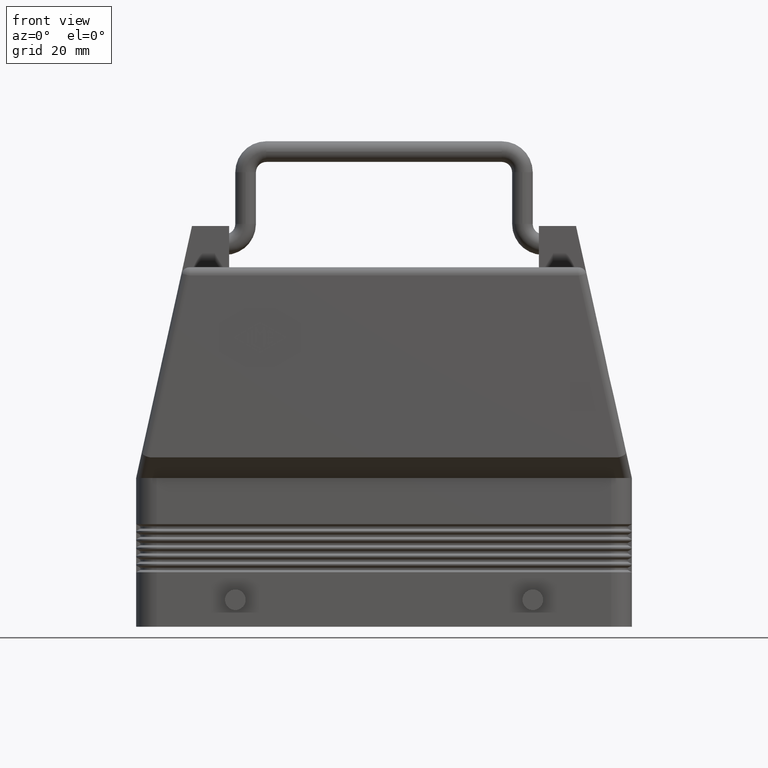
[diagram: clean part render]
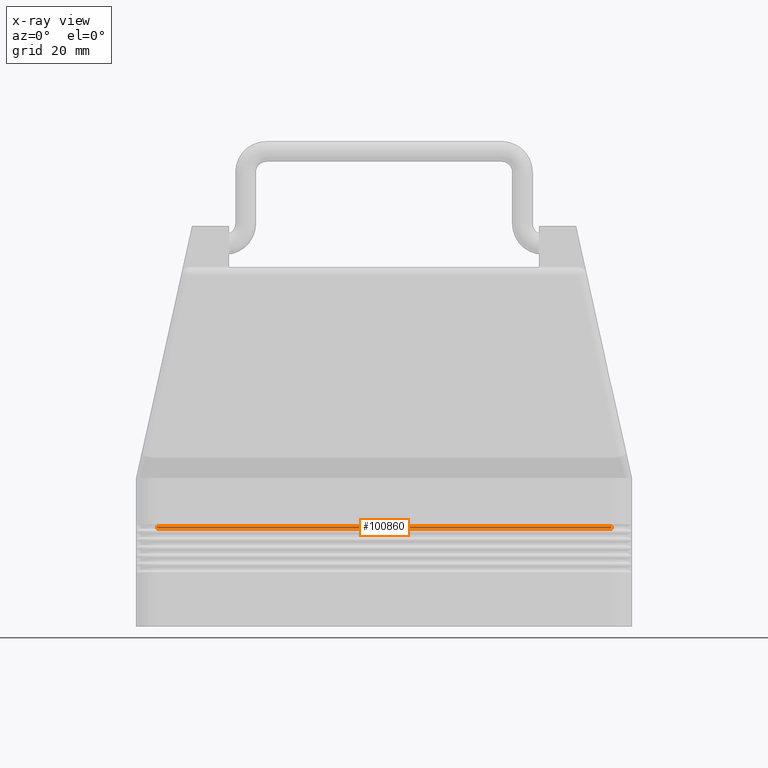
[diagram: x-ray — body ghosted, one internal face saturated and labeled with its STEP entity id]
A machine part, front view, then the same camera in x-ray: the body is ghosted and one INTERNAL B-rep face — a face not visible from any outside direction — is saturated and labeled: STEP entity #100860.
In plain terms, the highlighted planar face has unit normal (0, -1, 0).
Its self-contained STEP definition (entity closure, byte-faithful):
#98180=CARTESIAN_POINT('',(55.,20.5,24.25));
#98190=VERTEX_POINT('',#98180);
#98500=CARTESIAN_POINT('',(-55.,20.5,24.25));
#98510=VERTEX_POINT('',#98500);
#98540=CARTESIAN_POINT('',(55.,20.5,24.25));
#98550=DIRECTION('',(-1.,0.,0.));
#98560=VECTOR('',#98550,110.);
#98570=LINE('',#98540,#98560);
#98580=EDGE_CURVE('',#98190,#98510,#98570,.T.);
#100170=CARTESIAN_POINT('',(-55.,20.5,23.75));
#100180=VERTEX_POINT('',#100170);
#100210=CARTESIAN_POINT('',(-55.,20.5,24.25));
#100220=DIRECTION('',(0.,0.,-1.));
#100230=VECTOR('',#100220,0.5);
#100240=LINE('',#100210,#100230);
#100250=EDGE_CURVE('',#98510,#100180,#100240,.T.);
#100630=CARTESIAN_POINT('',(55.,20.5,24.25));
#100640=DIRECTION('',(0.,-1.,0.));
#100650=DIRECTION('',(0.,0.,-1.));
#100660=AXIS2_PLACEMENT_3D('',#100630,#100640,#100650);
#100670=PLANE('',#100660);
#100680=CARTESIAN_POINT('',(55.,20.5,23.75));
#100690=DIRECTION('',(-1.,0.,0.));
#100700=VECTOR('',#100690,110.);
#100710=LINE('',#100680,#100700);
#100720=CARTESIAN_POINT('',(55.,20.5,23.75));
#100730=VERTEX_POINT('',#100720);
#100740=EDGE_CURVE('',#100730,#100180,#100710,.T.);
#100750=ORIENTED_EDGE('',*,*,#100740,.T.);
#100760=CARTESIAN_POINT('',(55.,20.5,24.25));
#100770=DIRECTION('',(0.,0.,-1.));
#100780=VECTOR('',#100770,0.5);
#100790=LINE('',#100760,#100780);
#100800=EDGE_CURVE('',#98190,#100730,#100790,.T.);
#100810=ORIENTED_EDGE('',*,*,#100800,.T.);
#100820=ORIENTED_EDGE('',*,*,#98580,.F.);
#100830=ORIENTED_EDGE('',*,*,#100250,.F.);
#100840=EDGE_LOOP('',(#100830,#100820,#100810,#100750));
#100850=FACE_OUTER_BOUND('',#100840,.T.);
#100860=ADVANCED_FACE('',(#100850),#100670,.F.);